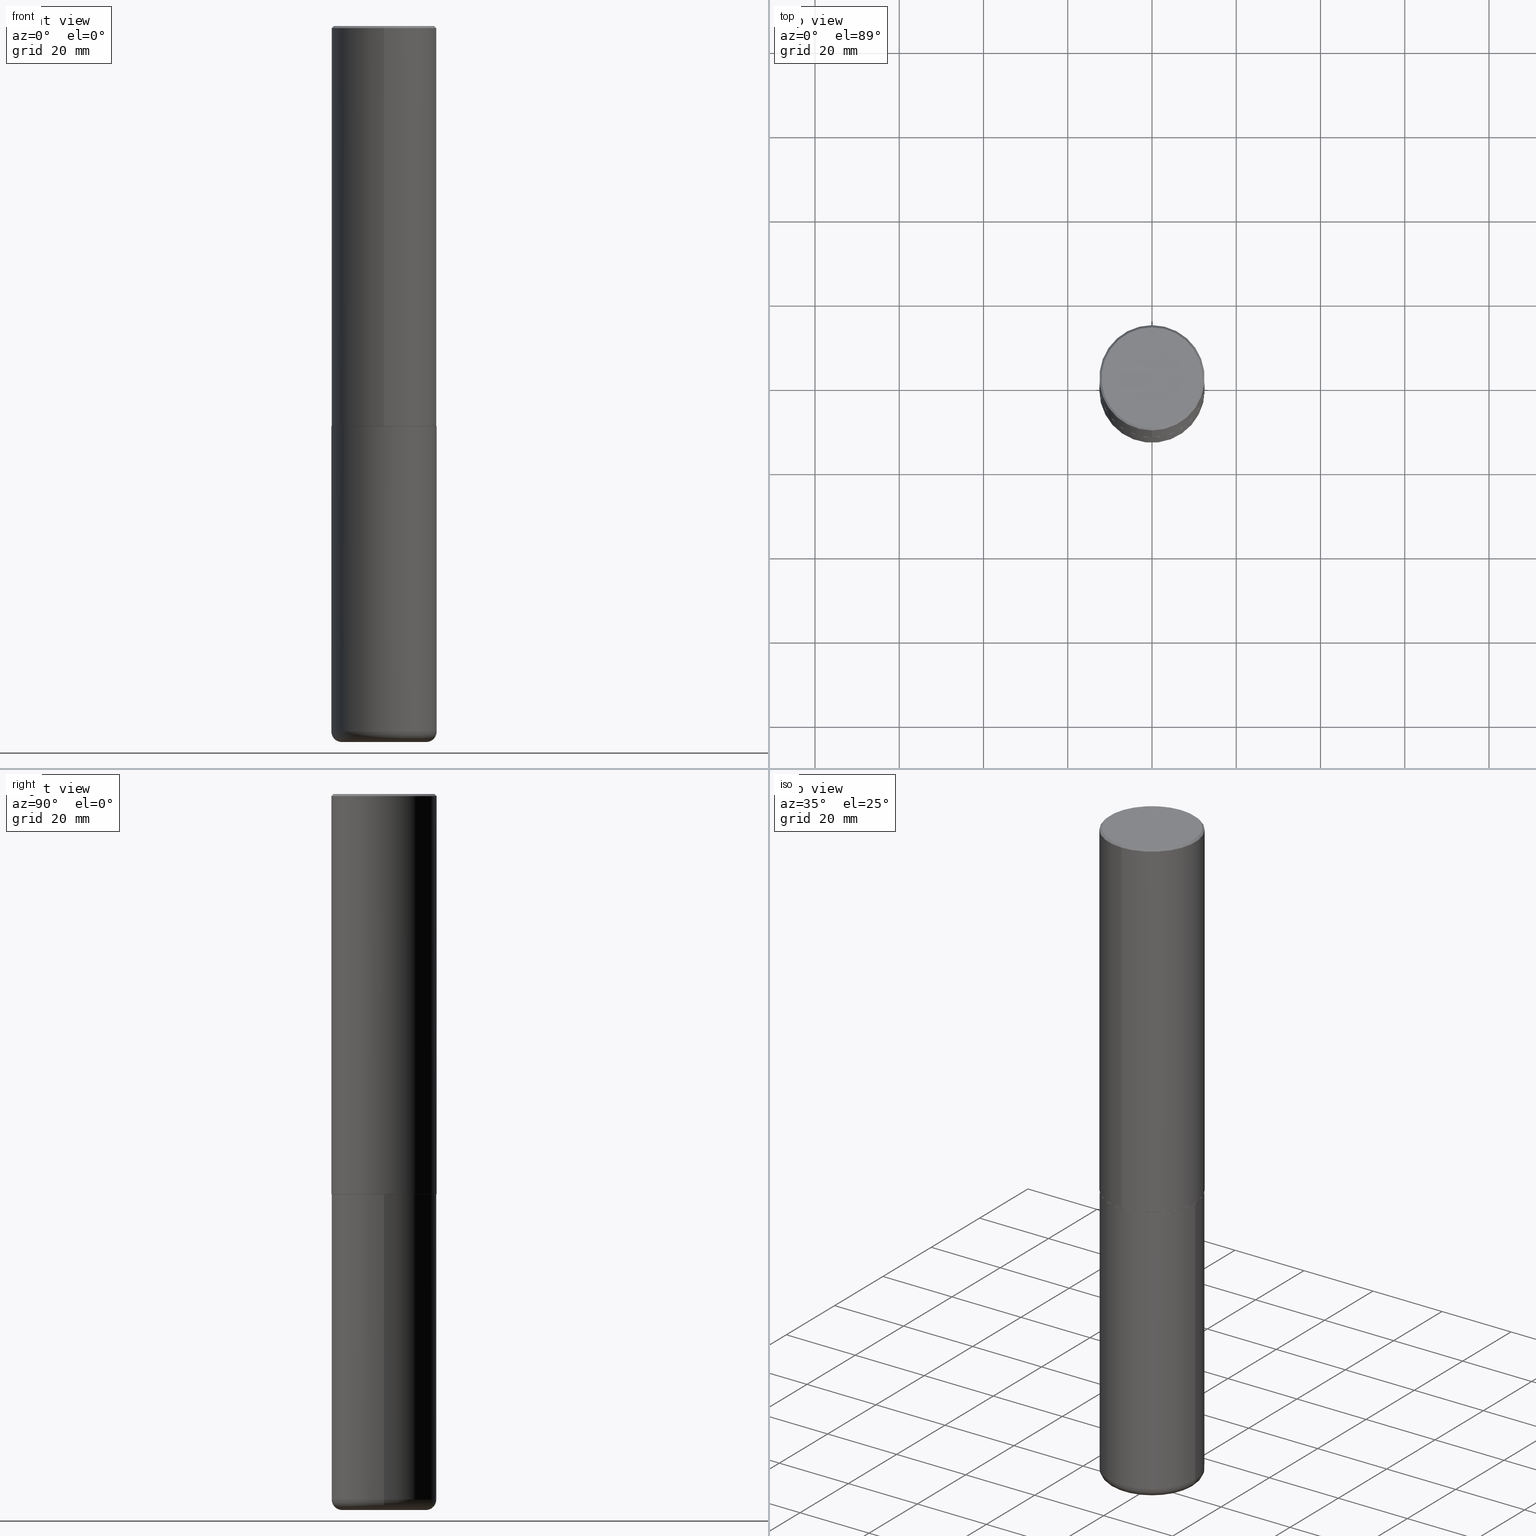
[diagram: canonical four-view strip — front | top / right | iso, engineering-drawing reading convention]
A machine part, canonical four-view strip (front | top / right | iso — engineering-drawing reading convention). The complete STEP part file that produces these views, byte-faithful:
ISO-10303-21;
HEADER;
FILE_DESCRIPTION (( 'STEP AP203' ),
    '1' );
FILE_NAME ('47622.STEP',
    '2024-03-06T19:43:16',
    ( '' ),
    ( '' ),
    'SwSTEP 2.0',
    'SolidWorks 2023',
    '' );
FILE_SCHEMA (( 'CONFIG_CONTROL_DESIGN' ));
ENDSEC;

DATA;
#1 = CARTESIAN_POINT ( 'NONE',  ( 1.612664404238788252E-28, -2.302457368900112328E-14, -6.594500000000000028 ) ) ;
#2 = CARTESIAN_POINT ( 'NONE',  ( -3.429682119145517860E-15, -0.4911500000000130206, -3.740099999999998204 ) ) ;
#3 = CONICAL_SURFACE ( 'NONE', #319, 0.4911499999999999755, 0.7853981633980288146 ) ;
#4 = CC_DESIGN_APPROVAL ( #106, ( #14 ) ) ;
#5 = CARTESIAN_POINT ( 'NONE',  ( 4.891953188903329688E-31, -6.981508314288001687E-17, -0.02000000000000010797 ) ) ;
#6 = CARTESIAN_POINT ( 'NONE',  ( 9.146297882013029477E-29, -1.305848935540725085E-14, -3.740100000000000424 ) ) ;
#7 = ADVANCED_FACE ( 'NONE', ( #349 ), #293, .T. ) ;
#8 = CARTESIAN_POINT ( 'NONE',  ( 0.3937499999999999889, -2.577411524334009159E-14, -6.594500000000000028 ) ) ;
#9 = EDGE_LOOP ( 'NONE', ( #46, #361, #395, #392 ) ) ;
#10 = DATE_TIME_ROLE ( 'creation_date' ) ;
#11 = ORIENTED_EDGE ( 'NONE', *, *, #15, .T. ) ;
#12 = EDGE_LOOP ( 'NONE', ( #333, #144, #396, #141 ) ) ;
#13 = AXIS2_PLACEMENT_3D ( 'NONE', #417, #124, #258 ) ;
#14 = SECURITY_CLASSIFICATION ( '', '', #410 ) ;
#15 = EDGE_CURVE ( 'NONE', #332, #298, #393, .T. ) ;
#16 = ORIENTED_EDGE ( 'NONE', *, *, #21, .T. ) ;
#17 = LINE ( 'NONE', #146, #30 ) ;
#18 = CALENDAR_DATE ( 2024, 6, 3 ) ;
#19 = AXIS2_PLACEMENT_3D ( 'NONE', #93, #98, #37 ) ;
#20 = CIRCLE ( 'NONE', #219, 0.4921500000000003650 ) ;
#21 = EDGE_CURVE ( 'NONE', #73, #168, #412, .T. ) ;
#22 = CARTESIAN_POINT ( 'NONE',  ( 9.145751084314172604E-29, -1.305227886897706845E-14, -3.739100000000000534 ) ) ;
#23 = COORDINATED_UNIVERSAL_TIME_OFFSET ( 5, 0, .BEHIND. ) ;
#24 = ORIENTED_EDGE ( 'NONE', *, *, #181, .F. ) ;
#25 = AXIS2_PLACEMENT_3D ( 'NONE', #251, #88, #353 ) ;
#26 = CARTESIAN_POINT ( 'NONE',  ( -0.3937499999999999889, -2.004900552282284682E-14, -6.692900000000000738 ) ) ;
#27 = MANIFOLD_SOLID_BREP ( 'Body-Move/Copy2[2]', #186 ) ;
#28 = DIRECTION ( 'NONE',  ( 2.438088387897960049E-29, -3.491481338843145188E-15, -1.000000000000000000 ) ) ;
#29 = AXIS2_PLACEMENT_3D ( 'NONE', #6, #201, #355 ) ;
#30 = VECTOR ( 'NONE', #278, 39.37007874015748143 ) ;
#31 = DIRECTION ( 'NONE',  ( -2.445976594451651952E-29, 3.490754157143982552E-15, 1.000000000000000000 ) ) ;
#32 = PLANE ( 'NONE',  #269 ) ;
#33 = CARTESIAN_POINT ( 'NONE',  ( -3.436665081823207030E-15, -0.4921500000000134101, -3.739099999999998758 ) ) ;
#34 = CARTESIAN_POINT ( 'NONE',  ( 9.146297882013029477E-29, -1.305848935540725085E-14, -3.740100000000000424 ) ) ;
#35 = DIRECTION ( 'NONE',  ( -1.000000000000000000, 7.105427357601011325E-15, 0.000000000000000000 ) ) ;
#36 = CARTESIAN_POINT ( 'NONE',  ( 3.493383360364624690E-15, 0.4911499999999869304, -3.740100000000001312 ) ) ;
#37 = DIRECTION ( 'NONE',  ( 6.982962677686265922E-15, 1.000000000000000000, -3.490754157143982552E-15 ) ) ;
#38 = ADVANCED_FACE ( 'NONE', ( #163 ), #295, .T. ) ;
#39 = CARTESIAN_POINT ( 'NONE',  ( -5.420756467185317189E-45, 7.736185299407739239E-31, 2.216193106459615290E-16 ) ) ;
#40 = AXIS2_PLACEMENT_3D ( 'NONE', #386, #323, #133 ) ;
#41 = ADVANCED_BREP_SHAPE_REPRESENTATION ( '47622', ( #161, #27, #394 ), #223 ) ;
#42 = EDGE_LOOP ( 'NONE', ( #11, #289, #105, #136 ) ) ;
#43 = FACE_OUTER_BOUND ( 'NONE', #109, .T. ) ;
#44 = FACE_OUTER_BOUND ( 'NONE', #241, .T. ) ;
#45 = EDGE_LOOP ( 'NONE', ( #160, #270, #183, #267 ) ) ;
#46 = ORIENTED_EDGE ( 'NONE', *, *, #340, .T. ) ;
#47 = EDGE_CURVE ( 'NONE', #134, #275, #218, .T. ) ;
#48 = ORIENTED_EDGE ( 'NONE', *, *, #242, .T. ) ;
#49 = VECTOR ( 'NONE', #322, 39.37007874015748143 ) ;
#50 = DIRECTION ( 'NONE',  ( 0.000000000000000000, 0.000000000000000000, 1.000000000000000000 ) ) ;
#51 = PERSON_AND_ORGANIZATION_ROLE ( 'design_owner' ) ;
#52 = DIRECTION ( 'NONE',  ( 1.000000000000000000, -6.982962677686266711E-15, 0.000000000000000000 ) ) ;
#53 = APPLICATION_PROTOCOL_DEFINITION ( 'international standard', 'config_control_design', 1994, #397 ) ;
#54 = APPROVAL ( #145, 'UNSPECIFIED' ) ;
#55 = APPROVAL_DATE_TIME ( #411, #106 ) ;
#56 = CLOSED_SHELL ( 'NONE', ( #7, #187, #268, #166, #378, #374 ) ) ;
#57 = CONICAL_SURFACE ( 'NONE', #103, 0.4921499999999999209, 0.7853981633974467247 ) ;
#58 = PERSON_AND_ORGANIZATION_ROLE ( 'classification_officer' ) ;
#59 = PERSON_AND_ORGANIZATION ( #250, #405 ) ;
#60 = FACE_OUTER_BOUND ( 'NONE', #239, .T. ) ;
#61 = FACE_OUTER_BOUND ( 'NONE', #12, .T. ) ;
#62 = EDGE_CURVE ( 'NONE', #73, #79, #379, .T. ) ;
#63 = CARTESIAN_POINT ( 'NONE',  ( 4.891953188903329688E-31, -6.981508314288001687E-17, -0.02000000000000010797 ) ) ;
#64 = CARTESIAN_POINT ( 'NONE',  ( 0.000000000000000000, 0.000000000000000000, 0.000000000000000000 ) ) ;
#65 = CARTESIAN_POINT ( 'NONE',  ( 4.891953188903329688E-31, -6.981508314288001687E-17, -0.02000000000000010797 ) ) ;
#66 = DIRECTION ( 'NONE',  ( -6.982962677686265922E-15, -1.000000000000000000, 3.337287582609300506E-15 ) ) ;
#67 = DIRECTION ( 'NONE',  ( -2.445468806185136597E-29, 3.491481338843145583E-15, 1.000000000000000000 ) ) ;
#68 = VECTOR ( 'NONE', #95, 39.37007874015748854 ) ;
#69 = AXIS2_PLACEMENT_3D ( 'NONE', #116, #143, #148 ) ;
#70 = DIRECTION ( 'NONE',  ( -6.982962677686266711E-15, -1.000000000000000000, 3.491481338843145583E-15 ) ) ;
#71 = LINE ( 'NONE', #194, #49 ) ;
#72 = DIRECTION ( 'NONE',  ( -6.982962677686265922E-15, -1.000000000000000000, 3.490754157143982946E-15 ) ) ;
#73 = VERTEX_POINT ( 'NONE', #158 ) ;
#74 = DIRECTION ( 'NONE',  ( -6.982962677686265922E-15, -1.000000000000000000, 3.490754157143982552E-15 ) ) ;
#75 = DIRECTION ( 'NONE',  ( -2.445976594451651952E-29, 3.490754157143982552E-15, 1.000000000000000000 ) ) ;
#76 = CIRCLE ( 'NONE', #69, 0.4921499999999999764 ) ;
#77 = APPROVAL_PERSON_ORGANIZATION ( #334, #249, #140 ) ;
#78 = ORIENTED_EDGE ( 'NONE', *, *, #47, .T. ) ;
#79 = VERTEX_POINT ( 'NONE', #290 ) ;
#80 = APPROVAL_ROLE ( '' ) ;
#81 = TOROIDAL_SURFACE ( 'NONE', #13, 0.3937499999999999889, 0.09840000000000061198 ) ;
#82 = MECHANICAL_CONTEXT ( 'NONE', #310, 'mechanical' ) ;
#83 = AXIS2_PLACEMENT_3D ( 'NONE', #64, #350, #184 ) ;
#84 = ORIENTED_EDGE ( 'NONE', *, *, #114, .T. ) ;
#85 = CARTESIAN_POINT ( 'NONE',  ( 1.636727817291650190E-28, -2.336813545274329412E-14, -6.692900000000000738 ) ) ;
#86 = ADVANCED_FACE ( 'NONE', ( #44 ), #3, .T. ) ;
#87 = APPROVAL_PERSON_ORGANIZATION ( #302, #54, #80 ) ;
#88 = DIRECTION ( 'NONE',  ( -2.445976594451651952E-29, 3.490754157143982552E-15, 1.000000000000000000 ) ) ;
#89 = EDGE_CURVE ( 'NONE', #326, #139, #154, .T. ) ;
#90 = CARTESIAN_POINT ( 'NONE',  ( 9.148197060908621523E-29, -1.305576962313420868E-14, -3.740099999999999980 ) ) ;
#91 = CIRCLE ( 'NONE', #245, 0.4721499999999996255 ) ;
#92 = EDGE_CURVE ( 'NONE', #298, #275, #391, .T. ) ;
#93 = CARTESIAN_POINT ( 'NONE',  ( 3.297005828269567997E-15, 0.4721499999999996255, -1.537349919972549256E-15 ) ) ;
#94 = CARTESIAN_POINT ( 'NONE',  ( 9.148197060908621523E-29, -1.305576962313420868E-14, -3.740099999999999980 ) ) ;
#95 = DIRECTION ( 'NONE',  ( -4.851104656540955597E-15, -0.7071067811865487940, -0.7071067811865461294 ) ) ;
#96 = CARTESIAN_POINT ( 'NONE',  ( -5.420756467185317189E-45, 7.736185299407739239E-31, 2.216193106459615290E-16 ) ) ;
#97 = CARTESIAN_POINT ( 'NONE',  ( -3.307789109625541747E-15, -0.4721499999999996255, 1.869778885941491673E-15 ) ) ;
#98 = DIRECTION ( 'NONE',  ( 2.445976594451651392E-29, -3.490754157143982552E-15, -1.000000000000000000 ) ) ;
#99 = DIRECTION ( 'NONE',  ( -2.445468806185136597E-29, 3.491481338843145583E-15, 1.000000000000000000 ) ) ;
#100 = ORIENTED_EDGE ( 'NONE', *, *, #62, .F. ) ;
#101 = DIRECTION ( 'NONE',  ( -6.982962677686265922E-15, -1.000000000000000000, 3.486624039460257331E-15 ) ) ;
#102 = AXIS2_PLACEMENT_3D ( 'NONE', #130, #261, #193 ) ;
#103 = AXIS2_PLACEMENT_3D ( 'NONE', #5, #123, #226 ) ;
#104 = ORIENTED_EDGE ( 'NONE', *, *, #331, .T. ) ;
#105 = ORIENTED_EDGE ( 'NONE', *, *, #47, .F. ) ;
#106 = APPROVAL ( #149, 'UNSPECIFIED' ) ;
#107 = ORIENTED_EDGE ( 'NONE', *, *, #409, .F. ) ;
#108 = CARTESIAN_POINT ( 'NONE',  ( 0.3937499999999999889, -2.611767700708225927E-14, -6.692900000000000738 ) ) ;
#109 = EDGE_LOOP ( 'NONE', ( #203, #273, #164, #402 ) ) ;
#110 = EDGE_CURVE ( 'NONE', #298, #332, #342, .T. ) ;
#111 = AXIS2_PLACEMENT_3D ( 'NONE', #94, #367, #175 ) ;
#112 = DATE_AND_TIME ( #407, #180 ) ;
#113 = CALENDAR_DATE ( 2024, 6, 3 ) ;
#114 = EDGE_CURVE ( 'NONE', #356, #300, #285, .T. ) ;
#115 = CARTESIAN_POINT ( 'NONE',  ( -0.4921500000000002539, -1.952763761495778959E-14, -6.594500000000000028 ) ) ;
#116 = CARTESIAN_POINT ( 'NONE',  ( 9.146297882013029477E-29, -1.305848935540725085E-14, -3.740100000000000424 ) ) ;
#117 = DATE_AND_TIME ( #341, #348 ) ;
#118 = PERSON_AND_ORGANIZATION ( #250, #405 ) ;
#119 = EDGE_CURVE ( 'NONE', #300, #332, #277, .T. ) ;
#120 = AXIS2_PLACEMENT_3D ( 'NONE', #1, #99, #237 ) ;
#121 = CONICAL_SURFACE ( 'NONE', #358, 0.4921499999999999209, 0.7853981633974467247 ) ;
#122 = LOCAL_TIME ( 14, 43, 16.00000000000000000, #314 ) ;
#123 = DIRECTION ( 'NONE',  ( 2.445976594451651952E-29, -3.490754157143982552E-15, -1.000000000000000000 ) ) ;
#124 = DIRECTION ( 'NONE',  ( -2.445468806185136597E-29, 3.491481338843145583E-15, 1.000000000000000000 ) ) ;
#125 = DIRECTION ( 'NONE',  ( 2.445976594451651952E-29, -3.490754157143982552E-15, -1.000000000000000000 ) ) ;
#126 = ORIENTED_EDGE ( 'NONE', *, *, #199, .T. ) ;
#127 = CARTESIAN_POINT ( 'NONE',  ( 1.636727817291650190E-28, -2.336813545274329412E-14, -6.692900000000000738 ) ) ;
#128 = CIRCLE ( 'NONE', #252, 0.4921499999999999209 ) ;
#129 = CIRCLE ( 'NONE', #240, 0.4921500000000003650 ) ;
#130 = CARTESIAN_POINT ( 'NONE',  ( 0.000000000000000000, 0.000000000000000000, 0.000000000000000000 ) ) ;
#131 = PRODUCT_DEFINITION_SHAPE ( 'NONE', 'NONE',  #235 ) ;
#132 = CARTESIAN_POINT ( 'NONE',  ( -0.3937499999999999889, -2.022681166694573006E-14, -6.594500000000000028 ) ) ;
#133 = DIRECTION ( 'NONE',  ( 1.000000000000000000, -6.982962677686266711E-15, 0.000000000000000000 ) ) ;
#134 = VERTEX_POINT ( 'NONE', #135 ) ;
#135 = CARTESIAN_POINT ( 'NONE',  ( 0.4921499999999999764, -1.649515443723054663E-14, -3.740100000000000424 ) ) ;
#136 = ORIENTED_EDGE ( 'NONE', *, *, #254, .F. ) ;
#137 = FACE_OUTER_BOUND ( 'NONE', #276, .T. ) ;
#138 = ORIENTED_EDGE ( 'NONE', *, *, #217, .T. ) ;
#139 = VERTEX_POINT ( 'NONE', #33 ) ;
#140 = APPROVAL_ROLE ( '' ) ;
#141 = ORIENTED_EDGE ( 'NONE', *, *, #181, .T. ) ;
#142 = DIRECTION ( 'NONE',  ( -2.445976594451651952E-29, 3.490754157143982552E-15, 1.000000000000000000 ) ) ;
#143 = DIRECTION ( 'NONE',  ( -2.445468806185136597E-29, 3.491481338843145583E-15, 1.000000000000000000 ) ) ;
#144 = ORIENTED_EDGE ( 'NONE', *, *, #21, .F. ) ;
#145 = APPROVAL_STATUS ( 'not_yet_approved' ) ;
#146 = CARTESIAN_POINT ( 'NONE',  ( 3.489830646685823002E-15, 0.4911499999999869304, -3.740100000000001312 ) ) ;
#147 = PERSON_AND_ORGANIZATION ( #250, #405 ) ;
#148 = DIRECTION ( 'NONE',  ( 1.000000000000000000, -6.982962677686265922E-15, 0.000000000000000000 ) ) ;
#149 = APPROVAL_STATUS ( 'not_yet_approved' ) ;
#150 = VECTOR ( 'NONE', #297, 39.37007874015748143 ) ;
#151 = EDGE_CURVE ( 'NONE', #168, #73, #91, .T. ) ;
#152 = DIRECTION ( 'NONE',  ( -1.000000000000000000, 6.982962677686265922E-15, -4.876176775795935793E-29 ) ) ;
#153 = LOCAL_TIME ( 14, 43, 16.00000000000000000, #272 ) ;
#154 = LINE ( 'NONE', #2, #162 ) ;
#155 = VERTEX_POINT ( 'NONE', #36 ) ;
#156 = CC_DESIGN_PERSON_AND_ORGANIZATION_ASSIGNMENT ( #118, #311, ( #338 ) ) ;
#157 = DIRECTION ( 'NONE',  ( 4.937700262164540154E-15, 0.7071067811865440200, -0.7071067811865511255 ) ) ;
#158 = CARTESIAN_POINT ( 'NONE',  ( 3.366835455046432084E-15, 0.4721499999999996255, -1.426540264649568516E-15 ) ) ;
#159 = DIRECTION ( 'NONE',  ( -1.000000000000000000, 6.982962677686265922E-15, -4.876176775795935793E-29 ) ) ;
#160 = ORIENTED_EDGE ( 'NONE', *, *, #92, .F. ) ;
#161 = MANIFOLD_SOLID_BREP ( 'Body-Move/Copy2[1]', #56 ) ;
#162 = VECTOR ( 'NONE', #196, 39.37007874015748143 ) ;
#163 = FACE_OUTER_BOUND ( 'NONE', #205, .T. ) ;
#164 = ORIENTED_EDGE ( 'NONE', *, *, #89, .T. ) ;
#165 = CARTESIAN_POINT ( 'NONE',  ( 9.148197060908621523E-29, -1.305576962313420868E-14, -3.740099999999999980 ) ) ;
#166 = ADVANCED_FACE ( 'NONE', ( #266 ), #195, .T. ) ;
#167 = ORIENTED_EDGE ( 'NONE', *, *, #242, .F. ) ;
#168 = VERTEX_POINT ( 'NONE', #97 ) ;
#169 = ORIENTED_EDGE ( 'NONE', *, *, #15, .F. ) ;
#170 = ORIENTED_EDGE ( 'NONE', *, *, #292, .T. ) ;
#171 = APPROVAL_STATUS ( 'not_yet_approved' ) ;
#172 = CC_DESIGN_SECURITY_CLASSIFICATION ( #14, ( #338 ) ) ;
#173 = DATE_AND_TIME ( #209, #153 ) ;
#174 = CC_DESIGN_PERSON_AND_ORGANIZATION_ASSIGNMENT ( #216, #281, ( #338 ) ) ;
#175 = DIRECTION ( 'NONE',  ( -6.982962677686265922E-15, -1.000000000000000000, 3.337287582609300506E-15 ) ) ;
#176 = ORIENTED_EDGE ( 'NONE', *, *, #110, .F. ) ;
#177 = CARTESIAN_POINT ( 'NONE',  ( 3.496936074043333291E-15, 0.4921500000000000874, -1.717974658438411319E-15 ) ) ;
#178 = CARTESIAN_POINT ( 'NONE',  ( 4.891953188903329688E-31, -6.981508314288001687E-17, -0.02000000000000010797 ) ) ;
#179 = AXIS2_PLACEMENT_3D ( 'NONE', #85, #213, #52 ) ;
#180 = LOCAL_TIME ( 14, 43, 16.00000000000000000, #366 ) ;
#181 = EDGE_CURVE ( 'NONE', #79, #301, #260, .T. ) ;
#182 = APPROVAL_DATE_TIME ( #173, #249 ) ;
#183 = ORIENTED_EDGE ( 'NONE', *, *, #254, .T. ) ;
#184 = DIRECTION ( 'NONE',  ( -6.982962677686265922E-15, -1.000000000000000000, 3.490754157143982552E-15 ) ) ;
#185 = PERSON_AND_ORGANIZATION ( #250, #405 ) ;
#186 = CLOSED_SHELL ( 'NONE', ( #86, #344, #389, #279, #38, #262, #359, #208 ) ) ;
#187 = ADVANCED_FACE ( 'NONE', ( #346 ), #81, .T. ) ;
#188 = DIRECTION ( 'NONE',  ( -2.445468806185136597E-29, 3.491481338843145583E-15, 1.000000000000000000 ) ) ;
#189 = FACE_OUTER_BOUND ( 'NONE', #206, .T. ) ;
#190 = EDGE_CURVE ( 'NONE', #326, #155, #222, .T. ) ;
#191 = AXIS2_PLACEMENT_3D ( 'NONE', #127, #259, #380 ) ;
#192 = CC_DESIGN_APPROVAL ( #249, ( #338 ) ) ;
#193 = DIRECTION ( 'NONE',  ( 1.000000000000000000, -6.982962677686265922E-15, 4.876176775795935793E-29 ) ) ;
#194 = CARTESIAN_POINT ( 'NONE',  ( -3.436665081823296565E-15, -0.4921500000000000874, 1.717974658438411319E-15 ) ) ;
#195 = CYLINDRICAL_SURFACE ( 'NONE', #102, 0.4921499999999999764 ) ;
#196 = DIRECTION ( 'NONE',  ( -4.937700262167413974E-15, -0.7071067811869555797, 0.7071067811861394548 ) ) ;
#197 = ORIENTED_EDGE ( 'NONE', *, *, #151, .T. ) ;
#198 = DIRECTION ( 'NONE',  ( -2.445976594451651952E-29, 3.490754157143982552E-15, 1.000000000000000000 ) ) ;
#199 = EDGE_CURVE ( 'NONE', #301, #79, #128, .T. ) ;
#200 = CONICAL_SURFACE ( 'NONE', #25, 0.4911499999999999755, 0.7853981633980288146 ) ;
#201 = DIRECTION ( 'NONE',  ( -2.445468806185136597E-29, 3.491481338843145583E-15, 1.000000000000000000 ) ) ;
#202 = ORIENTED_EDGE ( 'NONE', *, *, #190, .T. ) ;
#203 = ORIENTED_EDGE ( 'NONE', *, *, #331, .F. ) ;
#204 = APPROVAL_DATE_TIME ( #403, #54 ) ;
#205 = EDGE_LOOP ( 'NONE', ( #387, #246, #238, #24 ) ) ;
#206 = EDGE_LOOP ( 'NONE', ( #167, #84, #364, #176 ) ) ;
#207 = CARTESIAN_POINT ( 'NONE',  ( 0.000000000000000000, 0.000000000000000000, 0.000000000000000000 ) ) ;
#208 = ADVANCED_FACE ( 'NONE', ( #416 ), #324, .F. ) ;
#209 = CALENDAR_DATE ( 2024, 6, 3 ) ;
#210 = VECTOR ( 'NONE', #354, 39.37007874015748143 ) ;
#211 = CIRCLE ( 'NONE', #376, 0.4911499999999999755 ) ;
#212 = PERSON_AND_ORGANIZATION ( #250, #405 ) ;
#213 = DIRECTION ( 'NONE',  ( -2.445468806185136597E-29, 3.491481338843145583E-15, 1.000000000000000000 ) ) ;
#214 =( CONVERSION_BASED_UNIT ( 'INCH', #303 ) LENGTH_UNIT ( ) NAMED_UNIT ( #415 ) );
#215 = DIRECTION ( 'NONE',  ( -2.445976594451651952E-29, 3.490754157143982552E-15, 1.000000000000000000 ) ) ;
#216 = PERSON_AND_ORGANIZATION ( #250, #405 ) ;
#217 = EDGE_CURVE ( 'NONE', #168, #301, #328, .T. ) ;
#218 = CIRCLE ( 'NONE', #29, 0.4921499999999999764 ) ;
#219 = AXIS2_PLACEMENT_3D ( 'NONE', #291, #233, #224 ) ;
#220 = DIRECTION ( 'NONE',  ( 6.982962677686265922E-15, 1.000000000000000000, -3.486624039460257331E-15 ) ) ;
#221 = PRODUCT ( '47622', '47622', '', ( #82 ) ) ;
#222 = CIRCLE ( 'NONE', #111, 0.4911499999999999755 ) ;
#223 =( GEOMETRIC_REPRESENTATION_CONTEXT ( 3 ) GLOBAL_UNCERTAINTY_ASSIGNED_CONTEXT ( ( #377 ) ) GLOBAL_UNIT_ASSIGNED_CONTEXT ( ( #214, #336, #280 ) ) REPRESENTATION_CONTEXT ( 'NONE', 'WORKASPACE' ) );
#224 = DIRECTION ( 'NONE',  ( -6.982962677686265922E-15, -1.000000000000000000, 3.330506545156063496E-15 ) ) ;
#225 = CYLINDRICAL_SURFACE ( 'NONE', #83, 0.4921500000000000874 ) ;
#226 = DIRECTION ( 'NONE',  ( 6.982962677686265922E-15, 1.000000000000000000, -3.486624039460257331E-15 ) ) ;
#227 = CARTESIAN_POINT ( 'NONE',  ( -3.376394089603257868E-15, -0.4921499999999999764, -0.01999999999999839059 ) ) ;
#228 = EDGE_CURVE ( 'NONE', #139, #301, #71, .T. ) ;
#229 = CARTESIAN_POINT ( 'NONE',  ( 0.000000000000000000, 0.000000000000000000, 0.000000000000000000 ) ) ;
#230 =( LENGTH_UNIT ( ) NAMED_UNIT ( * ) SI_UNIT ( $, .METRE. ) );
#231 = AXIS2_PLACEMENT_3D ( 'NONE', #39, #75, #325 ) ;
#232 = DIRECTION ( 'NONE',  ( -2.445976594451651952E-29, 3.490754157143982552E-15, 1.000000000000000000 ) ) ;
#233 = DIRECTION ( 'NONE',  ( -2.445976594451651952E-29, 3.490754157143982552E-15, 1.000000000000000000 ) ) ;
#234 = CARTESIAN_POINT ( 'NONE',  ( -0.4921499999999999764, 3.496936074043332897E-15, -2.420853904668951509E-29 ) ) ;
#235 = PRODUCT_DEFINITION ( 'UNKNOWN', '', #338, #383 ) ;
#236 = CARTESIAN_POINT ( 'NONE',  ( 0.4921499999999999764, -3.436665081823295777E-15, 2.399810400207969603E-29 ) ) ;
#237 = DIRECTION ( 'NONE',  ( 1.000000000000000000, -6.982962677686266711E-15, 0.000000000000000000 ) ) ;
#238 = ORIENTED_EDGE ( 'NONE', *, *, #228, .T. ) ;
#239 = EDGE_LOOP ( 'NONE', ( #296, #244 ) ) ;
#240 = AXIS2_PLACEMENT_3D ( 'NONE', #22, #215, #308 ) ;
#241 = EDGE_LOOP ( 'NONE', ( #202, #104, #357, #362 ) ) ;
#242 = EDGE_CURVE ( 'NONE', #356, #298, #381, .T. ) ;
#243 = DIRECTION ( 'NONE',  ( 1.000000000000000000, 0.000000000000000000, 0.000000000000000000 ) ) ;
#244 = ORIENTED_EDGE ( 'NONE', *, *, #114, .F. ) ;
#245 = AXIS2_PLACEMENT_3D ( 'NONE', #96, #232, #72 ) ;
#246 = ORIENTED_EDGE ( 'NONE', *, *, #339, .T. ) ;
#247 = PERSON_AND_ORGANIZATION_ROLE ( 'creator' ) ;
#248 = LINE ( 'NONE', #177, #283 ) ;
#249 = APPROVAL ( #171, 'UNSPECIFIED' ) ;
#250 = PERSON ( 'UNSPECIFIED', 'UNSPECIFIED', 'UNSPECIFIED', ('UNSPECIFIED'), ('UNSPECIFIED'), ('UNSPECIFIED') ) ;
#251 = CARTESIAN_POINT ( 'NONE',  ( 9.148197060908621523E-29, -1.305576962313420868E-14, -3.740099999999999980 ) ) ;
#252 = AXIS2_PLACEMENT_3D ( 'NONE', #178, #142, #418 ) ;
#253 = TOROIDAL_SURFACE ( 'NONE', #372, 0.3937499999999999889, 0.09840000000000061198 ) ;
#254 = EDGE_CURVE ( 'NONE', #332, #134, #385, .T. ) ;
#255 = PLANE ( 'NONE',  #382 ) ;
#256 = FACE_OUTER_BOUND ( 'NONE', #399, .T. ) ;
#257 = CC_DESIGN_PERSON_AND_ORGANIZATION_ASSIGNMENT ( #59, #58, ( #14 ) ) ;
#258 = DIRECTION ( 'NONE',  ( 1.000000000000000000, -6.982962677686264344E-15, 4.883557194083112340E-29 ) ) ;
#259 = DIRECTION ( 'NONE',  ( -2.445468806185136597E-29, 3.491481338843145583E-15, 1.000000000000000000 ) ) ;
#260 = CIRCLE ( 'NONE', #307, 0.4921499999999999209 ) ;
#261 = DIRECTION ( 'NONE',  ( -2.445468806185136597E-29, 3.491481338843145583E-15, 1.000000000000000000 ) ) ;
#262 = ADVANCED_FACE ( 'NONE', ( #43 ), #200, .T. ) ;
#263 = DIRECTION ( 'NONE',  ( 7.105427357601001859E-15, 1.000000000000000000, -3.491481338843145583E-15 ) ) ;
#264 = DIRECTION ( 'NONE',  ( -2.445976594451651952E-29, 3.490754157143982552E-15, 1.000000000000000000 ) ) ;
#265 = ORIENTED_EDGE ( 'NONE', *, *, #151, .F. ) ;
#266 = FACE_OUTER_BOUND ( 'NONE', #45, .T. ) ;
#267 = ORIENTED_EDGE ( 'NONE', *, *, #292, .F. ) ;
#268 = ADVANCED_FACE ( 'NONE', ( #137 ), #400, .F. ) ;
#269 = AXIS2_PLACEMENT_3D ( 'NONE', #317, #28, #152 ) ;
#270 = ORIENTED_EDGE ( 'NONE', *, *, #110, .T. ) ;
#271 = ORIENTED_EDGE ( 'NONE', *, *, #304, .T. ) ;
#272 = COORDINATED_UNIVERSAL_TIME_OFFSET ( 5, 0, .BEHIND. ) ;
#273 = ORIENTED_EDGE ( 'NONE', *, *, #409, .T. ) ;
#274 = APPLICATION_PROTOCOL_DEFINITION ( 'international standard', 'config_control_design', 1994, #310 ) ;
#275 = VERTEX_POINT ( 'NONE', #284 ) ;
#276 = EDGE_LOOP ( 'NONE', ( #78, #170 ) ) ;
#277 = CIRCLE ( 'NONE', #404, 0.09840000000000065361 ) ;
#278 = DIRECTION ( 'NONE',  ( 5.024295867790978808E-15, 0.7071067811869604647, 0.7071067811861345698 ) ) ;
#279 = ADVANCED_FACE ( 'NONE', ( #61 ), #121, .T. ) ;
#280 =( NAMED_UNIT ( * ) SI_UNIT ( $, .STERADIAN. ) SOLID_ANGLE_UNIT ( ) );
#281 = PERSON_AND_ORGANIZATION_ROLE ( 'design_supplier' ) ;
#282 = AXIS2_PLACEMENT_3D ( 'NONE', #229, #31, #74 ) ;
#283 = VECTOR ( 'NONE', #305, 39.37007874015748143 ) ;
#284 = CARTESIAN_POINT ( 'NONE',  ( -0.4921499999999999764, -1.454459544816085417E-14, -3.740100000000000424 ) ) ;
#285 = CIRCLE ( 'NONE', #191, 0.3937499999999999889 ) ;
#286 = CC_DESIGN_DATE_AND_TIME_ASSIGNMENT ( #117, #337, ( #14 ) ) ;
#287 = CC_DESIGN_APPROVAL ( #54, ( #235 ) ) ;
#288 = DIRECTION ( 'NONE',  ( 1.000000000000000000, -6.982962677686254878E-15, 0.000000000000000000 ) ) ;
#289 = ORIENTED_EDGE ( 'NONE', *, *, #92, .T. ) ;
#290 = CARTESIAN_POINT ( 'NONE',  ( 3.436665081823295777E-15, 0.4921499999999998098, -0.02000000000000182188 ) ) ;
#291 = CARTESIAN_POINT ( 'NONE',  ( 9.145751084314172604E-29, -1.305227886897706845E-14, -3.739100000000000534 ) ) ;
#292 = EDGE_CURVE ( 'NONE', #275, #134, #76, .T. ) ;
#293 = CYLINDRICAL_SURFACE ( 'NONE', #370, 0.4921499999999999764 ) ;
#294 = CIRCLE ( 'NONE', #179, 0.3937499999999999889 ) ;
#295 = CYLINDRICAL_SURFACE ( 'NONE', #282, 0.4921500000000000874 ) ;
#296 = ORIENTED_EDGE ( 'NONE', *, *, #304, .F. ) ;
#297 = DIRECTION ( 'NONE',  ( -2.445468806185136877E-29, 3.491481338843145188E-15, 1.000000000000000000 ) ) ;
#298 = VERTEX_POINT ( 'NONE', #115 ) ;
#299 = VERTEX_POINT ( 'NONE', #401 ) ;
#300 = VERTEX_POINT ( 'NONE', #108 ) ;
#301 = VERTEX_POINT ( 'NONE', #406 ) ;
#302 = PERSON_AND_ORGANIZATION ( #250, #405 ) ;
#303 = LENGTH_MEASURE_WITH_UNIT ( LENGTH_MEASURE( 0.02539999999999999897 ), #230 );
#304 = EDGE_CURVE ( 'NONE', #300, #356, #294, .T. ) ;
#305 = DIRECTION ( 'NONE',  ( -2.445976594451651672E-29, 3.490754157143982552E-15, 1.000000000000000000 ) ) ;
#306 = COORDINATED_UNIVERSAL_TIME_OFFSET ( 5, 0, .BEHIND. ) ;
#307 = AXIS2_PLACEMENT_3D ( 'NONE', #63, #351, #101 ) ;
#308 = DIRECTION ( 'NONE',  ( -6.982962677686265922E-15, -1.000000000000000000, 3.330506545156063496E-15 ) ) ;
#309 = EDGE_CURVE ( 'NONE', #299, #79, #248, .T. ) ;
#310 = APPLICATION_CONTEXT ( 'configuration controlled 3d designs of mechanical parts and assemblies' ) ;
#311 = PERSON_AND_ORGANIZATION_ROLE ( 'creator' ) ;
#312 = DIRECTION ( 'NONE',  ( 1.000000000000000000, -6.982962677686264344E-15, 4.883557194083112340E-29 ) ) ;
#313 = EDGE_LOOP ( 'NONE', ( #330, #107 ) ) ;
#314 = COORDINATED_UNIVERSAL_TIME_OFFSET ( 5, 0, .BEHIND. ) ;
#315 = DIRECTION ( 'NONE',  ( 2.438088387897960049E-29, -3.491481338843145188E-15, -1.000000000000000000 ) ) ;
#316 = CC_DESIGN_DATE_AND_TIME_ASSIGNMENT ( #112, #10, ( #235 ) ) ;
#317 = CARTESIAN_POINT ( 'NONE',  ( 3.396978449284492588E-29, -4.194234288059909583E-14, -6.692899999999999849 ) ) ;
#318 = FACE_OUTER_BOUND ( 'NONE', #9, .T. ) ;
#319 = AXIS2_PLACEMENT_3D ( 'NONE', #165, #264, #347 ) ;
#320 = LOCAL_TIME ( 14, 43, 16.00000000000000000, #306 ) ;
#321 = CARTESIAN_POINT ( 'NONE',  ( 0.000000000000000000, 0.000000000000000000, 0.000000000000000000 ) ) ;
#322 = DIRECTION ( 'NONE',  ( -2.445976594451651672E-29, 3.490754157143982552E-15, 1.000000000000000000 ) ) ;
#323 = DIRECTION ( 'NONE',  ( -2.445468806185136597E-29, 3.491481338843145583E-15, 1.000000000000000000 ) ) ;
#324 = PLANE ( 'NONE',  #19 ) ;
#325 = DIRECTION ( 'NONE',  ( -6.982962677686265922E-15, -1.000000000000000000, 3.490754157143982946E-15 ) ) ;
#326 = VERTEX_POINT ( 'NONE', #369 ) ;
#327 = AXIS2_PLACEMENT_3D ( 'NONE', #34, #315, #159 ) ;
#328 = LINE ( 'NONE', #227, #68 ) ;
#329 = CARTESIAN_POINT ( 'NONE',  ( 3.436665081823295777E-15, 0.4921499999999998098, -0.02000000000000182188 ) ) ;
#330 = ORIENTED_EDGE ( 'NONE', *, *, #190, .F. ) ;
#331 = EDGE_CURVE ( 'NONE', #155, #299, #17, .T. ) ;
#332 = VERTEX_POINT ( 'NONE', #368 ) ;
#333 = ORIENTED_EDGE ( 'NONE', *, *, #217, .F. ) ;
#334 = PERSON_AND_ORGANIZATION ( #250, #405 ) ;
#335 = VECTOR ( 'NONE', #157, 39.37007874015748143 ) ;
#336 =( NAMED_UNIT ( * ) PLANE_ANGLE_UNIT ( ) SI_UNIT ( $, .RADIAN. ) );
#337 = DATE_TIME_ROLE ( 'classification_date' ) ;
#338 = PRODUCT_DEFINITION_FORMATION_WITH_SPECIFIED_SOURCE ( 'ANY', '', #221, .NOT_KNOWN. ) ;
#339 = EDGE_CURVE ( 'NONE', #299, #139, #129, .T. ) ;
#340 = EDGE_CURVE ( 'NONE', #139, #299, #20, .T. ) ;
#341 = CALENDAR_DATE ( 2024, 6, 3 ) ;
#342 = CIRCLE ( 'NONE', #120, 0.4921499999999999209 ) ;
#343 = DIRECTION ( 'NONE',  ( -6.982962677686265922E-15, -1.000000000000000000, 3.490754157143982552E-15 ) ) ;
#344 = ADVANCED_FACE ( 'NONE', ( #318 ), #225, .T. ) ;
#345 = FACE_OUTER_BOUND ( 'NONE', #313, .T. ) ;
#346 = FACE_OUTER_BOUND ( 'NONE', #365, .T. ) ;
#347 = DIRECTION ( 'NONE',  ( -6.982962677686265922E-15, -1.000000000000000000, 3.337287582609300506E-15 ) ) ;
#348 = LOCAL_TIME ( 14, 43, 16.00000000000000000, #23 ) ;
#349 = FACE_OUTER_BOUND ( 'NONE', #42, .T. ) ;
#350 = DIRECTION ( 'NONE',  ( -2.445976594451651952E-29, 3.490754157143982552E-15, 1.000000000000000000 ) ) ;
#351 = DIRECTION ( 'NONE',  ( -2.445976594451651952E-29, 3.490754157143982552E-15, 1.000000000000000000 ) ) ;
#352 = CARTESIAN_POINT ( 'NONE',  ( 9.148197060908621523E-29, -1.305576962313420868E-14, -3.740099999999999980 ) ) ;
#353 = DIRECTION ( 'NONE',  ( -6.982962677686265922E-15, -1.000000000000000000, 3.337287582609300506E-15 ) ) ;
#354 = DIRECTION ( 'NONE',  ( -2.445468806185136877E-29, 3.491481338843145188E-15, 1.000000000000000000 ) ) ;
#355 = DIRECTION ( 'NONE',  ( 1.000000000000000000, -6.982962677686265922E-15, 0.000000000000000000 ) ) ;
#356 = VERTEX_POINT ( 'NONE', #26 ) ;
#357 = ORIENTED_EDGE ( 'NONE', *, *, #340, .F. ) ;
#358 = AXIS2_PLACEMENT_3D ( 'NONE', #65, #125, #220 ) ;
#359 = ADVANCED_FACE ( 'NONE', ( #345 ), #255, .F. ) ;
#360 = ORIENTED_EDGE ( 'NONE', *, *, #119, .F. ) ;
#361 = ORIENTED_EDGE ( 'NONE', *, *, #309, .T. ) ;
#362 = ORIENTED_EDGE ( 'NONE', *, *, #89, .F. ) ;
#363 = PRODUCT_RELATED_PRODUCT_CATEGORY ( 'detail', '', ( #221 ) ) ;
#364 = ORIENTED_EDGE ( 'NONE', *, *, #119, .T. ) ;
#365 = EDGE_LOOP ( 'NONE', ( #271, #48, #169, #360 ) ) ;
#366 = COORDINATED_UNIVERSAL_TIME_OFFSET ( 5, 0, .BEHIND. ) ;
#367 = DIRECTION ( 'NONE',  ( -2.445976594451651952E-29, 3.490754157143982552E-15, 1.000000000000000000 ) ) ;
#368 = CARTESIAN_POINT ( 'NONE',  ( 0.4921500000000002539, -2.646123877082442063E-14, -6.594500000000000028 ) ) ;
#369 = CARTESIAN_POINT ( 'NONE',  ( -3.429682119145517860E-15, -0.4911500000000130206, -3.740099999999998204 ) ) ;
#370 = AXIS2_PLACEMENT_3D ( 'NONE', #321, #188, #384 ) ;
#371 = CC_DESIGN_PERSON_AND_ORGANIZATION_ASSIGNMENT ( #212, #51, ( #221 ) ) ;
#372 = AXIS2_PLACEMENT_3D ( 'NONE', #398, #67, #312 ) ;
#373 = SHAPE_DEFINITION_REPRESENTATION ( #131, #41 ) ;
#374 = ADVANCED_FACE ( 'NONE', ( #60 ), #32, .T. ) ;
#375 = AXIS2_PLACEMENT_3D ( 'NONE', #132, #263, #35 ) ;
#376 = AXIS2_PLACEMENT_3D ( 'NONE', #352, #198, #66 ) ;
#377 = UNCERTAINTY_MEASURE_WITH_UNIT (LENGTH_MEASURE( 1.000000000000000082E-05 ), #214, 'distance_accuracy_value', 'NONE');
#378 = ADVANCED_FACE ( 'NONE', ( #189 ), #253, .T. ) ;
#379 = LINE ( 'NONE', #329, #335 ) ;
#380 = DIRECTION ( 'NONE',  ( 1.000000000000000000, -6.982962677686266711E-15, 0.000000000000000000 ) ) ;
#381 = CIRCLE ( 'NONE', #375, 0.09840000000000065361 ) ;
#382 = AXIS2_PLACEMENT_3D ( 'NONE', #90, #413, #343 ) ;
#383 = DESIGN_CONTEXT ( 'detailed design', #397, 'design' ) ;
#384 = DIRECTION ( 'NONE',  ( 1.000000000000000000, -6.982962677686265922E-15, 4.876176775795935793E-29 ) ) ;
#385 = LINE ( 'NONE', #236, #210 ) ;
#386 = CARTESIAN_POINT ( 'NONE',  ( 1.612664404238788252E-28, -2.302457368900112328E-14, -6.594500000000000028 ) ) ;
#387 = ORIENTED_EDGE ( 'NONE', *, *, #309, .F. ) ;
#388 = EDGE_LOOP ( 'NONE', ( #16, #197 ) ) ;
#389 = ADVANCED_FACE ( 'NONE', ( #256 ), #57, .T. ) ;
#390 = CC_DESIGN_PERSON_AND_ORGANIZATION_ASSIGNMENT ( #147, #247, ( #235 ) ) ;
#391 = LINE ( 'NONE', #234, #150 ) ;
#392 = ORIENTED_EDGE ( 'NONE', *, *, #228, .F. ) ;
#393 = CIRCLE ( 'NONE', #40, 0.4921499999999999209 ) ;
#394 = AXIS2_PLACEMENT_3D ( 'NONE', #207, #50, #243 ) ;
#395 = ORIENTED_EDGE ( 'NONE', *, *, #199, .F. ) ;
#396 = ORIENTED_EDGE ( 'NONE', *, *, #62, .T. ) ;
#397 = APPLICATION_CONTEXT ( 'configuration controlled 3d designs of mechanical parts and assemblies' ) ;
#398 = CARTESIAN_POINT ( 'NONE',  ( 1.612664404238788252E-28, -2.302457368900112328E-14, -6.594500000000000028 ) ) ;
#399 = EDGE_LOOP ( 'NONE', ( #265, #138, #126, #100 ) ) ;
#400 = PLANE ( 'NONE',  #327 ) ;
#401 = CARTESIAN_POINT ( 'NONE',  ( 3.496936074043380229E-15, 0.4921499999999873198, -3.739100000000002311 ) ) ;
#402 = ORIENTED_EDGE ( 'NONE', *, *, #339, .F. ) ;
#403 = DATE_AND_TIME ( #18, #320 ) ;
#404 = AXIS2_PLACEMENT_3D ( 'NONE', #8, #70, #288 ) ;
#405 = ORGANIZATION ( 'UNSPECIFIED', 'UNSPECIFIED', '' ) ;
#406 = CARTESIAN_POINT ( 'NONE',  ( -3.376394089603257868E-15, -0.4921499999999999764, -0.01999999999999839059 ) ) ;
#407 = CALENDAR_DATE ( 2024, 6, 3 ) ;
#408 = APPROVAL_ROLE ( '' ) ;
#409 = EDGE_CURVE ( 'NONE', #155, #326, #211, .T. ) ;
#410 = SECURITY_CLASSIFICATION_LEVEL ( 'unclassified' ) ;
#411 = DATE_AND_TIME ( #113, #122 ) ;
#412 = CIRCLE ( 'NONE', #231, 0.4721499999999996255 ) ;
#413 = DIRECTION ( 'NONE',  ( -2.445976594451651392E-29, 3.490754157143982552E-15, 1.000000000000000000 ) ) ;
#414 = APPROVAL_PERSON_ORGANIZATION ( #185, #106, #408 ) ;
#415 = DIMENSIONAL_EXPONENTS ( 1.000000000000000000, 0.000000000000000000, 0.000000000000000000, 0.000000000000000000, 0.000000000000000000, 0.000000000000000000, 0.000000000000000000 ) ;
#416 = FACE_OUTER_BOUND ( 'NONE', #388, .T. ) ;
#417 = CARTESIAN_POINT ( 'NONE',  ( 1.612664404238788252E-28, -2.302457368900112328E-14, -6.594500000000000028 ) ) ;
#418 = DIRECTION ( 'NONE',  ( -6.982962677686265922E-15, -1.000000000000000000, 3.486624039460257331E-15 ) ) ;
ENDSEC;
END-ISO-10303-21;
